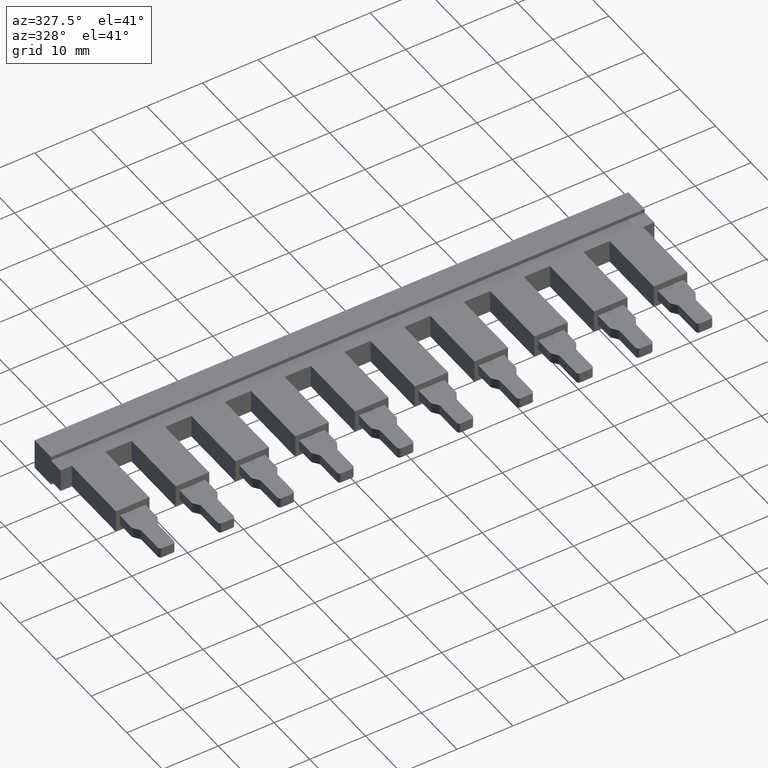
[diagram: clean part render]
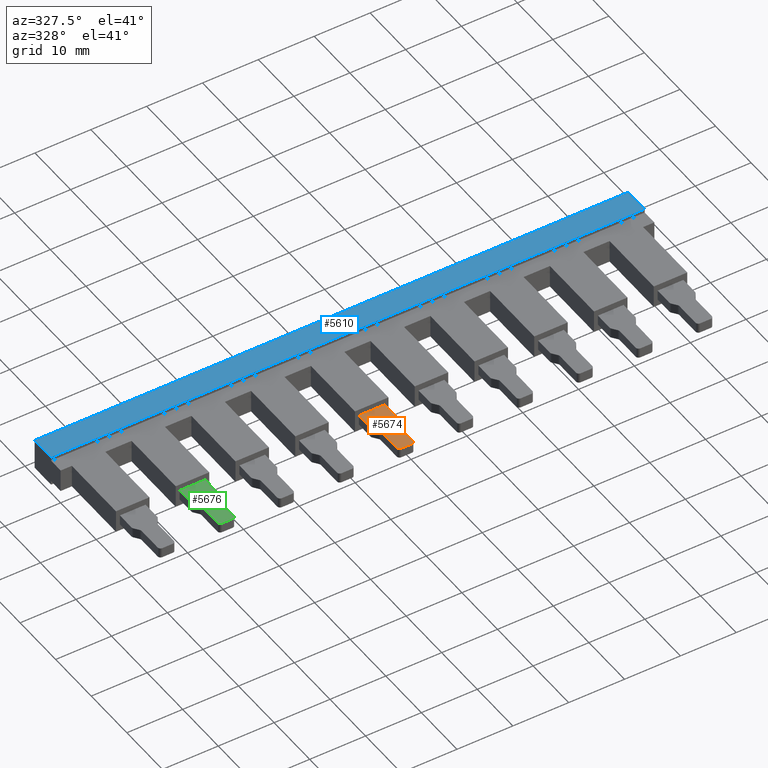
[diagram: same view with three faces highlighted in distinct colors, each labeled with its STEP entity id]
A machine part, auxiliary view with three faces highlighted in distinct colors.
Their STEP definitions:

[orange] entity #5674 — the highlighted planar face has unit normal (-0, 0, -1).
#873 = PLANE ( 'NONE',  #1191 ) ;
#874 = CARTESIAN_POINT ( 'NONE',  ( 45.50000000000000000, -2.699999999999986900, 2.949999999999999700 ) ) ;
#878 = DIRECTION ( 'NONE',  ( -9.427844978134822700E-017, 0.0000000000000000000, -1.000000000000000000 ) ) ;
#879 = DIRECTION ( 'NONE',  ( -1.000000000000000000, 0.0000000000000000000, 9.427844978134822700E-017 ) ) ;
#896 = FACE_OUTER_BOUND ( 'NONE', #2271, .T. ) ;
#1191 = AXIS2_PLACEMENT_3D ( 'NONE', #874, #878, #879 ) ;
#1601 = VECTOR ( 'NONE', #3871, 1000.000000000000000 ) ;
#1640 = VECTOR ( 'NONE', #3103, 1000.000000000000000 ) ;
#1646 = VECTOR ( 'NONE', #3930, 1000.000000000000100 ) ;
#1659 = CIRCLE ( 'NONE', #1662, 0.5000000000000004400 ) ;
#1662 = AXIS2_PLACEMENT_3D ( 'NONE', #3982, #3964, #3994 ) ;
#1669 = CIRCLE ( 'NONE', #1747, 0.5000000000000282000 ) ;
#1693 = AXIS2_PLACEMENT_3D ( 'NONE', #3230, #3232, #3233 ) ;
#1694 = VECTOR ( 'NONE', #3240, 1000.000000000000100 ) ;
#1699 = AXIS2_PLACEMENT_3D ( 'NONE', #3201, #3189, #3211 ) ;
#1700 = CIRCLE ( 'NONE', #1729, 0.5000000000000004400 ) ;
#1701 = VECTOR ( 'NONE', #3140, 1000.000000000000000 ) ;
#1709 = CIRCLE ( 'NONE', #1710, 0.5000000000000004400 ) ;
#1710 = AXIS2_PLACEMENT_3D ( 'NONE', #3200, #3221, #3222 ) ;
#1719 = VECTOR ( 'NONE', #3196, 1000.000000000000000 ) ;
#1729 = AXIS2_PLACEMENT_3D ( 'NONE', #3150, #3162, #3147 ) ;
#1730 = CIRCLE ( 'NONE', #1693, 0.5000000000000282000 ) ;
#1741 = VECTOR ( 'NONE', #3182, 1000.000000000000000 ) ;
#1745 = VECTOR ( 'NONE', #3261, 1000.000000000000000 ) ;
#1747 = AXIS2_PLACEMENT_3D ( 'NONE', #3112, #3116, #3117 ) ;
#1749 = CIRCLE ( 'NONE', #1699, 0.5000000000000004400 ) ;
#2271 = EDGE_LOOP ( 'NONE', ( #2886, #2945, #2889, #2905, #2861, #2881, #2911, #2857, #2902, #2897, #2882, #2898, #2891, #2878 ) ) ;
#2857 = ORIENTED_EDGE ( 'NONE', *, *, #5343, .F. ) ;
#2861 = ORIENTED_EDGE ( 'NONE', *, *, #5339, .F. ) ;
#2878 = ORIENTED_EDGE ( 'NONE', *, *, #5350, .F. ) ;
#2881 = ORIENTED_EDGE ( 'NONE', *, *, #5385, .F. ) ;
#2882 = ORIENTED_EDGE ( 'NONE', *, *, #5298, .T. ) ;
#2886 = ORIENTED_EDGE ( 'NONE', *, *, #5284, .F. ) ;
#2889 = ORIENTED_EDGE ( 'NONE', *, *, #5387, .T. ) ;
#2891 = ORIENTED_EDGE ( 'NONE', *, *, #5369, .F. ) ;
#2897 = ORIENTED_EDGE ( 'NONE', *, *, #5354, .T. ) ;
#2898 = ORIENTED_EDGE ( 'NONE', *, *, #5317, .F. ) ;
#2902 = ORIENTED_EDGE ( 'NONE', *, *, #5375, .F. ) ;
#2905 = ORIENTED_EDGE ( 'NONE', *, *, #5363, .T. ) ;
#2911 = ORIENTED_EDGE ( 'NONE', *, *, #5367, .F. ) ;
#2945 = ORIENTED_EDGE ( 'NONE', *, *, #5359, .F. ) ;
#3103 = DIRECTION ( 'NONE',  ( 0.0000000000000000000, 1.000000000000000000, 0.0000000000000000000 ) ) ;
#3112 = CARTESIAN_POINT ( 'NONE',  ( 48.74999999999999300, -21.69999999999998200, 2.949999999999999300 ) ) ;
#3115 = LINE ( 'NONE', #3133, #1640 ) ;
#3116 = DIRECTION ( 'NONE',  ( -0.0000000000000000000, 1.665334536937734800E-016, -1.000000000000000000 ) ) ;
#3117 = DIRECTION ( 'NONE',  ( 0.0000000000000000000, -1.000000000000000000, 0.0000000000000000000 ) ) ;
#3133 = CARTESIAN_POINT ( 'NONE',  ( 46.34999999999999400, -2.699999999999986900, 2.949999999999999700 ) ) ;
#3140 = DIRECTION ( 'NONE',  ( 1.000000000000000000, 0.0000000000000000000, -9.427844978134822700E-017 ) ) ;
#3147 = DIRECTION ( 'NONE',  ( -1.000000000000000000, 0.0000000000000000000, 0.0000000000000000000 ) ) ;
#3150 = CARTESIAN_POINT ( 'NONE',  ( 49.74999999999966600, -17.16666666666699500, 2.949999999999999300 ) ) ;
#3154 = CARTESIAN_POINT ( 'NONE',  ( 30.77069040994249600, -12.39999999999999700, 2.950000000000001100 ) ) ;
#3162 = DIRECTION ( 'NONE',  ( 0.0000000000000000000, 0.0000000000000000000, -1.000000000000000000 ) ) ;
#3163 = LINE ( 'NONE', #3154, #1701 ) ;
#3182 = DIRECTION ( 'NONE',  ( -0.0000000000000000000, -1.000000000000000000, -0.0000000000000000000 ) ) ;
#3189 = DIRECTION ( 'NONE',  ( -0.0000000000000000000, -0.0000000000000000000, -1.000000000000000000 ) ) ;
#3190 = LINE ( 'NONE', #3199, #1719 ) ;
#3196 = DIRECTION ( 'NONE',  ( -1.000000000000000000, 0.0000000000000000000, 9.427844978134822700E-017 ) ) ;
#3199 = CARTESIAN_POINT ( 'NONE',  ( 45.50000000000000000, -22.19999999999999200, 2.949999999999999700 ) ) ;
#3200 = CARTESIAN_POINT ( 'NONE',  ( 46.00000000000000000, -15.70000000000010200, 2.949999999999999700 ) ) ;
#3201 = CARTESIAN_POINT ( 'NONE',  ( 45.85000000000021500, -17.16666666666671000, 2.949999999999999700 ) ) ;
#3207 = LINE ( 'NONE', #3212, #1741 ) ;
#3211 = DIRECTION ( 'NONE',  ( 1.000000000000000000, 0.0000000000000000000, 0.0000000000000000000 ) ) ;
#3212 = CARTESIAN_POINT ( 'NONE',  ( 50.10000000000000100, -2.699999999999986900, 2.949999999999999300 ) ) ;
#3221 = DIRECTION ( 'NONE',  ( 0.0000000000000000000, 0.0000000000000000000, -1.000000000000000000 ) ) ;
#3222 = DIRECTION ( 'NONE',  ( -1.000000000000000000, 0.0000000000000000000, 0.0000000000000000000 ) ) ;
#3230 = CARTESIAN_POINT ( 'NONE',  ( 46.85000000000007200, -21.69999999999998200, 2.949999999999999700 ) ) ;
#3232 = DIRECTION ( 'NONE',  ( 0.0000000000000000000, 0.0000000000000000000, -1.000000000000000000 ) ) ;
#3233 = DIRECTION ( 'NONE',  ( -1.000000000000000000, 0.0000000000000000000, 0.0000000000000000000 ) ) ;
#3236 = LINE ( 'NONE', #3237, #1694 ) ;
#3237 = CARTESIAN_POINT ( 'NONE',  ( 45.60000000000010100, -16.00000000000023400, 2.949999999999999700 ) ) ;
#3240 = DIRECTION ( 'NONE',  ( 0.6000000000001560800, -0.7999999999998829200, -0.0000000000000000000 ) ) ;
#3242 = CARTESIAN_POINT ( 'NONE',  ( 49.24999999999965900, -2.699999999999986900, 2.949999999999999300 ) ) ;
#3250 = LINE ( 'NONE', #3242, #1745 ) ;
#3261 = DIRECTION ( 'NONE',  ( -0.0000000000000000000, -1.000000000000000000, -0.0000000000000000000 ) ) ;
#3866 = LINE ( 'NONE', #3873, #1601 ) ;
#3871 = DIRECTION ( 'NONE',  ( 0.0000000000000000000, 1.000000000000000000, 0.0000000000000000000 ) ) ;
#3873 = CARTESIAN_POINT ( 'NONE',  ( 45.50000000000000000, -2.699999999999986900, 2.949999999999999700 ) ) ;
#3887 = LINE ( 'NONE', #3921, #1646 ) ;
#3921 = CARTESIAN_POINT ( 'NONE',  ( 49.99999999999999300, -16.00000000000023400, 2.949999999999999700 ) ) ;
#3930 = DIRECTION ( 'NONE',  ( 0.6000000000001560800, 0.7999999999998829200, -0.0000000000000000000 ) ) ;
#3964 = DIRECTION ( 'NONE',  ( -0.0000000000000000000, -0.0000000000000000000, -1.000000000000000000 ) ) ;
#3982 = CARTESIAN_POINT ( 'NONE',  ( 49.59999999999999400, -15.70000000000023700, 2.949999999999999300 ) ) ;
#3994 = DIRECTION ( 'NONE',  ( 1.000000000000000000, 0.0000000000000000000, 0.0000000000000000000 ) ) ;
#4751 = CARTESIAN_POINT ( 'NONE',  ( 49.24999999999982900, -21.69999999999998200, 2.949999999999999300 ) ) ;
#4752 = CARTESIAN_POINT ( 'NONE',  ( 49.34999999999971700, -16.86666666666691600, 2.949999999999999300 ) ) ;
#4765 = CARTESIAN_POINT ( 'NONE',  ( 46.35000000000010800, -17.16666666666672500, 2.949999999999999700 ) ) ;
#4769 = CARTESIAN_POINT ( 'NONE',  ( 49.99999999999994300, -16.00000000000031300, 2.949999999999999300 ) ) ;
#4771 = CARTESIAN_POINT ( 'NONE',  ( 46.34999999999999400, -21.69999999999998200, 2.949999999999999700 ) ) ;
#4772 = CARTESIAN_POINT ( 'NONE',  ( 45.60000000000005800, -16.00000000000018100, 2.949999999999999700 ) ) ;
#4784 = CARTESIAN_POINT ( 'NONE',  ( 50.10000000000000100, -15.70000000000023700, 2.949999999999999300 ) ) ;
#4796 = CARTESIAN_POINT ( 'NONE',  ( 48.74999999999999300, -22.19999999999999200, 2.949999999999999300 ) ) ;
#4815 = CARTESIAN_POINT ( 'NONE',  ( 46.25000000000015600, -16.86666666666663500, 2.949999999999999700 ) ) ;
#4818 = CARTESIAN_POINT ( 'NONE',  ( 49.24999999999965900, -17.16666666666700900, 2.949999999999999300 ) ) ;
#4828 = CARTESIAN_POINT ( 'NONE',  ( 46.85000000000007200, -22.19999999999999200, 2.949999999999999700 ) ) ;
#4831 = CARTESIAN_POINT ( 'NONE',  ( 50.10000000000000100, -12.39999999999999700, 2.949999999999999300 ) ) ;
#4850 = CARTESIAN_POINT ( 'NONE',  ( 45.50000000000000000, -12.39999999999999700, 2.949999999999999700 ) ) ;
#4854 = CARTESIAN_POINT ( 'NONE',  ( 45.50000000000000000, -15.70000000000010200, 2.949999999999999700 ) ) ;
#5284 = EDGE_CURVE ( 'NONE', #6076, #6070, #3866, .T. ) ;
#5298 = EDGE_CURVE ( 'NONE', #6016, #5997, #3887, .T. ) ;
#5317 = EDGE_CURVE ( 'NONE', #6004, #5997, #1659, .T. ) ;
#5339 = EDGE_CURVE ( 'NONE', #6002, #5988, #3115, .T. ) ;
#5343 = EDGE_CURVE ( 'NONE', #5986, #6021, #1669, .T. ) ;
#5350 = EDGE_CURVE ( 'NONE', #6070, #6052, #3163, .T. ) ;
#5354 = EDGE_CURVE ( 'NONE', #6026, #6016, #1700, .T. ) ;
#5359 = EDGE_CURVE ( 'NONE', #6003, #6076, #1709, .T. ) ;
#5363 = EDGE_CURVE ( 'NONE', #6029, #5988, #1749, .T. ) ;
#5367 = EDGE_CURVE ( 'NONE', #6021, #6045, #3190, .T. ) ;
#5369 = EDGE_CURVE ( 'NONE', #6052, #6004, #3207, .T. ) ;
#5375 = EDGE_CURVE ( 'NONE', #6026, #5986, #3250, .T. ) ;
#5385 = EDGE_CURVE ( 'NONE', #6045, #6002, #1730, .T. ) ;
#5387 = EDGE_CURVE ( 'NONE', #6003, #6029, #3236, .T. ) ;
#5674 = ADVANCED_FACE ( 'NONE', ( #896 ), #873, .F. ) ;
#5986 = VERTEX_POINT ( 'NONE', #4751 ) ;
#5988 = VERTEX_POINT ( 'NONE', #4765 ) ;
#5997 = VERTEX_POINT ( 'NONE', #4769 ) ;
#6002 = VERTEX_POINT ( 'NONE', #4771 ) ;
#6003 = VERTEX_POINT ( 'NONE', #4772 ) ;
#6004 = VERTEX_POINT ( 'NONE', #4784 ) ;
#6016 = VERTEX_POINT ( 'NONE', #4752 ) ;
#6021 = VERTEX_POINT ( 'NONE', #4796 ) ;
#6026 = VERTEX_POINT ( 'NONE', #4818 ) ;
#6029 = VERTEX_POINT ( 'NONE', #4815 ) ;
#6045 = VERTEX_POINT ( 'NONE', #4828 ) ;
#6052 = VERTEX_POINT ( 'NONE', #4831 ) ;
#6070 = VERTEX_POINT ( 'NONE', #4850 ) ;
#6076 = VERTEX_POINT ( 'NONE', #4854 ) ;

[blue] entity #5610 — the highlighted planar face has unit normal (0, 0, 1).
#558 = PLANE ( 'NONE',  #1101 ) ;
#565 = DIRECTION ( 'NONE',  ( 0.0000000000000000000, 0.0000000000000000000, 1.000000000000000000 ) ) ;
#569 = FACE_OUTER_BOUND ( 'NONE', #2199, .T. ) ;
#580 = CARTESIAN_POINT ( 'NONE',  ( -10.70000000000000300, 7.299999999999993600, 4.799999999999999800 ) ) ;
#582 = DIRECTION ( 'NONE',  ( 1.000000000000000000, 0.0000000000000000000, -0.0000000000000000000 ) ) ;
#1101 = AXIS2_PLACEMENT_3D ( 'NONE', #580, #565, #582 ) ;
#1326 = VECTOR ( 'NONE', #2423, 1000.000000000000000 ) ;
#1346 = VECTOR ( 'NONE', #2410, 1000.000000000000000 ) ;
#1395 = VECTOR ( 'NONE', #2493, 1000.000000000000000 ) ;
#1401 = VECTOR ( 'NONE', #2506, 1000.000000000000000 ) ;
#2199 = EDGE_LOOP ( 'NONE', ( #6256, #6236, #6239, #6245 ) ) ;
#2322 = LINE ( 'NONE', #2384, #1346 ) ;
#2384 = CARTESIAN_POINT ( 'NONE',  ( -10.70000000000000300, 7.299999999999993600, 4.799999999999999800 ) ) ;
#2410 = DIRECTION ( 'NONE',  ( -1.000000000000000000, -2.775557561562890400E-016, 0.0000000000000000000 ) ) ;
#2423 = DIRECTION ( 'NONE',  ( -2.409338161078894500E-017, -1.000000000000000000, 0.0000000000000000000 ) ) ;
#2428 = CARTESIAN_POINT ( 'NONE',  ( 0.0000000000000000000, 7.299999999999999800, 4.799999999999999800 ) ) ;
#2459 = LINE ( 'NONE', #2428, #1326 ) ;
#2465 = LINE ( 'NONE', #2509, #1395 ) ;
#2470 = LINE ( 'NONE', #2500, #1401 ) ;
#2493 = DIRECTION ( 'NONE',  ( -3.016491377670779700E-016, 1.000000000000000000, 0.0000000000000000000 ) ) ;
#2500 = CARTESIAN_POINT ( 'NONE',  ( 31.39999999999999900, 2.700000000000005100, 4.799999999999999800 ) ) ;
#2506 = DIRECTION ( 'NONE',  ( 1.000000000000000000, 2.775557561562890400E-016, 0.0000000000000000000 ) ) ;
#2509 = CARTESIAN_POINT ( 'NONE',  ( 106.3000000000000000, 7.300000000000017600, 4.799999999999999800 ) ) ;
#4586 = CARTESIAN_POINT ( 'NONE',  ( 106.3000000000000000, 2.700000000000017500, 4.799999999999999800 ) ) ;
#4609 = CARTESIAN_POINT ( 'NONE',  ( -1.108295554096292100E-016, 2.699999999999997500, 4.799999999999999800 ) ) ;
#4636 = CARTESIAN_POINT ( 'NONE',  ( 106.3000000000000000, 7.300000000000017600, 4.799999999999999800 ) ) ;
#4668 = CARTESIAN_POINT ( 'NONE',  ( 0.0000000000000000000, 7.299999999999999800, 4.799999999999999800 ) ) ;
#5035 = EDGE_CURVE ( 'NONE', #5842, #5843, #2322, .T. ) ;
#5051 = EDGE_CURVE ( 'NONE', #5843, #5826, #2459, .T. ) ;
#5078 = EDGE_CURVE ( 'NONE', #5808, #5842, #2465, .T. ) ;
#5079 = EDGE_CURVE ( 'NONE', #5826, #5808, #2470, .T. ) ;
#5610 = ADVANCED_FACE ( 'NONE', ( #569 ), #558, .T. ) ;
#5808 = VERTEX_POINT ( 'NONE', #4586 ) ;
#5826 = VERTEX_POINT ( 'NONE', #4609 ) ;
#5842 = VERTEX_POINT ( 'NONE', #4636 ) ;
#5843 = VERTEX_POINT ( 'NONE', #4668 ) ;
#6236 = ORIENTED_EDGE ( 'NONE', *, *, #5078, .T. ) ;
#6239 = ORIENTED_EDGE ( 'NONE', *, *, #5035, .T. ) ;
#6245 = ORIENTED_EDGE ( 'NONE', *, *, #5051, .T. ) ;
#6256 = ORIENTED_EDGE ( 'NONE', *, *, #5079, .T. ) ;

[green] entity #5676 — the highlighted planar face has unit normal (-0, 0, -1).
#554 = FACE_OUTER_BOUND ( 'NONE', #2268, .T. ) ;
#747 = PLANE ( 'NONE',  #1203 ) ;
#788 = CARTESIAN_POINT ( 'NONE',  ( 13.39999999999999900, -2.699999999999992200, 2.949999999999999700 ) ) ;
#790 = DIRECTION ( 'NONE',  ( -9.427844978134822700E-017, 0.0000000000000000000, -1.000000000000000000 ) ) ;
#843 = DIRECTION ( 'NONE',  ( -1.000000000000000000, 0.0000000000000000000, 9.427844978134822700E-017 ) ) ;
#1203 = AXIS2_PLACEMENT_3D ( 'NONE', #788, #790, #843 ) ;
#1509 = AXIS2_PLACEMENT_3D ( 'NONE', #3634, #3647, #3636 ) ;
#1512 = CIRCLE ( 'NONE', #1509, 0.5000000000000004400 ) ;
#1524 = VECTOR ( 'NONE', #3575, 1000.000000000000100 ) ;
#1538 = VECTOR ( 'NONE', #3726, 1000.000000000000000 ) ;
#1557 = CIRCLE ( 'NONE', #1564, 0.5000000000000282000 ) ;
#1564 = AXIS2_PLACEMENT_3D ( 'NONE', #3695, #3732, #3701 ) ;
#1570 = VECTOR ( 'NONE', #3738, 1000.000000000000000 ) ;
#1578 = AXIS2_PLACEMENT_3D ( 'NONE', #3803, #3797, #3813 ) ;
#1592 = AXIS2_PLACEMENT_3D ( 'NONE', #3767, #3774, #3740 ) ;
#1602 = VECTOR ( 'NONE', #3860, 1000.000000000000000 ) ;
#1603 = CIRCLE ( 'NONE', #1592, 0.5000000000000004400 ) ;
#1609 = AXIS2_PLACEMENT_3D ( 'NONE', #3792, #3796, #3826 ) ;
#1611 = VECTOR ( 'NONE', #3817, 1000.000000000000100 ) ;
#1626 = CIRCLE ( 'NONE', #1627, 0.5000000000000282000 ) ;
#1627 = AXIS2_PLACEMENT_3D ( 'NONE', #3742, #3741, #3743 ) ;
#1629 = CIRCLE ( 'NONE', #1578, 0.5000000000000004400 ) ;
#1630 = CIRCLE ( 'NONE', #1609, 0.5000000000000004400 ) ;
#1631 = VECTOR ( 'NONE', #3919, 1000.000000000000000 ) ;
#1636 = VECTOR ( 'NONE', #4006, 1000.000000000000000 ) ;
#1686 = VECTOR ( 'NONE', #3107, 1000.000000000000000 ) ;
#2268 = EDGE_LOOP ( 'NONE', ( #2676, #2710, #2698, #2677, #2697, #2709, #2717, #2712, #2672, #2723, #2669, #2711, #2726, #2690 ) ) ;
#2669 = ORIENTED_EDGE ( 'NONE', *, *, #5192, .T. ) ;
#2672 = ORIENTED_EDGE ( 'NONE', *, *, #5230, .F. ) ;
#2676 = ORIENTED_EDGE ( 'NONE', *, *, #5226, .F. ) ;
#2677 = ORIENTED_EDGE ( 'NONE', *, *, #5253, .T. ) ;
#2690 = ORIENTED_EDGE ( 'NONE', *, *, #5333, .F. ) ;
#2697 = ORIENTED_EDGE ( 'NONE', *, *, #5300, .F. ) ;
#2698 = ORIENTED_EDGE ( 'NONE', *, *, #5254, .T. ) ;
#2709 = ORIENTED_EDGE ( 'NONE', *, *, #5252, .F. ) ;
#2710 = ORIENTED_EDGE ( 'NONE', *, *, #5260, .F. ) ;
#2711 = ORIENTED_EDGE ( 'NONE', *, *, #5264, .F. ) ;
#2712 = ORIENTED_EDGE ( 'NONE', *, *, #5231, .F. ) ;
#2717 = ORIENTED_EDGE ( 'NONE', *, *, #5281, .F. ) ;
#2723 = ORIENTED_EDGE ( 'NONE', *, *, #5196, .T. ) ;
#2726 = ORIENTED_EDGE ( 'NONE', *, *, #5331, .F. ) ;
#3107 = DIRECTION ( 'NONE',  ( 1.000000000000000000, 0.0000000000000000000, -9.427844978134822700E-017 ) ) ;
#3121 = LINE ( 'NONE', #3122, #1686 ) ;
#3122 = CARTESIAN_POINT ( 'NONE',  ( -1.329309590057499600, -12.40000000000000200, 2.950000000000001100 ) ) ;
#3561 = CARTESIAN_POINT ( 'NONE',  ( 17.89999999999999900, -16.00000000000024200, 2.949999999999999700 ) ) ;
#3575 = DIRECTION ( 'NONE',  ( 0.6000000000001560800, 0.7999999999998829200, -0.0000000000000000000 ) ) ;
#3585 = LINE ( 'NONE', #3561, #1524 ) ;
#3634 = CARTESIAN_POINT ( 'NONE',  ( 17.64999999999966500, -17.16666666666699800, 2.949999999999999300 ) ) ;
#3636 = DIRECTION ( 'NONE',  ( -1.000000000000000000, 0.0000000000000000000, 0.0000000000000000000 ) ) ;
#3647 = DIRECTION ( 'NONE',  ( 0.0000000000000000000, 0.0000000000000000000, -1.000000000000000000 ) ) ;
#3695 = CARTESIAN_POINT ( 'NONE',  ( 16.64999999999999900, -21.69999999999998900, 2.949999999999999300 ) ) ;
#3697 = CARTESIAN_POINT ( 'NONE',  ( 13.39999999999999900, -2.699999999999992200, 2.949999999999999700 ) ) ;
#3701 = DIRECTION ( 'NONE',  ( 0.0000000000000000000, -1.000000000000000000, 0.0000000000000000000 ) ) ;
#3726 = DIRECTION ( 'NONE',  ( -0.0000000000000000000, -1.000000000000000000, -0.0000000000000000000 ) ) ;
#3732 = DIRECTION ( 'NONE',  ( -0.0000000000000000000, 1.665334536937734800E-016, -1.000000000000000000 ) ) ;
#3733 = LINE ( 'NONE', #3697, #1570 ) ;
#3737 = LINE ( 'NONE', #3739, #1538 ) ;
#3738 = DIRECTION ( 'NONE',  ( 0.0000000000000000000, 1.000000000000000000, 0.0000000000000000000 ) ) ;
#3739 = CARTESIAN_POINT ( 'NONE',  ( 17.14999999999966500, -2.699999999999992200, 2.949999999999999300 ) ) ;
#3740 = DIRECTION ( 'NONE',  ( 1.000000000000000000, 0.0000000000000000000, 0.0000000000000000000 ) ) ;
#3741 = DIRECTION ( 'NONE',  ( 0.0000000000000000000, 0.0000000000000000000, -1.000000000000000000 ) ) ;
#3742 = CARTESIAN_POINT ( 'NONE',  ( 14.75000000000007800, -21.69999999999998900, 2.949999999999999700 ) ) ;
#3743 = DIRECTION ( 'NONE',  ( -1.000000000000000000, 0.0000000000000000000, 0.0000000000000000000 ) ) ;
#3744 = LINE ( 'NONE', #3765, #1611 ) ;
#3765 = CARTESIAN_POINT ( 'NONE',  ( 13.50000000000010100, -16.00000000000024200, 2.949999999999999700 ) ) ;
#3767 = CARTESIAN_POINT ( 'NONE',  ( 13.75000000000022000, -17.16666666666671800, 2.949999999999999700 ) ) ;
#3774 = DIRECTION ( 'NONE',  ( -0.0000000000000000000, -0.0000000000000000000, -1.000000000000000000 ) ) ;
#3792 = CARTESIAN_POINT ( 'NONE',  ( 13.89999999999999900, -15.70000000000010900, 2.949999999999999700 ) ) ;
#3796 = DIRECTION ( 'NONE',  ( 0.0000000000000000000, 0.0000000000000000000, -1.000000000000000000 ) ) ;
#3797 = DIRECTION ( 'NONE',  ( -0.0000000000000000000, -0.0000000000000000000, -1.000000000000000000 ) ) ;
#3803 = CARTESIAN_POINT ( 'NONE',  ( 17.49999999999999600, -15.70000000000024400, 2.949999999999999300 ) ) ;
#3813 = DIRECTION ( 'NONE',  ( 1.000000000000000000, 0.0000000000000000000, 0.0000000000000000000 ) ) ;
#3817 = DIRECTION ( 'NONE',  ( 0.6000000000001560800, -0.7999999999998829200, -0.0000000000000000000 ) ) ;
#3826 = DIRECTION ( 'NONE',  ( -1.000000000000000000, 0.0000000000000000000, 0.0000000000000000000 ) ) ;
#3855 = LINE ( 'NONE', #3856, #1602 ) ;
#3856 = CARTESIAN_POINT ( 'NONE',  ( 13.39999999999999900, -22.19999999999999600, 2.949999999999999700 ) ) ;
#3860 = DIRECTION ( 'NONE',  ( -1.000000000000000000, 0.0000000000000000000, 9.427844978134822700E-017 ) ) ;
#3914 = CARTESIAN_POINT ( 'NONE',  ( 14.24999999999999800, -2.699999999999992200, 2.949999999999999700 ) ) ;
#3919 = DIRECTION ( 'NONE',  ( 0.0000000000000000000, 1.000000000000000000, 0.0000000000000000000 ) ) ;
#3948 = LINE ( 'NONE', #3914, #1631 ) ;
#4005 = LINE ( 'NONE', #4014, #1636 ) ;
#4006 = DIRECTION ( 'NONE',  ( -0.0000000000000000000, -1.000000000000000000, -0.0000000000000000000 ) ) ;
#4014 = CARTESIAN_POINT ( 'NONE',  ( 18.00000000000000400, -2.699999999999992200, 2.949999999999999300 ) ) ;
#4736 = CARTESIAN_POINT ( 'NONE',  ( 14.15000000000016200, -16.86666666666664200, 2.949999999999999700 ) ) ;
#4739 = CARTESIAN_POINT ( 'NONE',  ( 17.89999999999994500, -16.00000000000032000, 2.949999999999999300 ) ) ;
#4755 = CARTESIAN_POINT ( 'NONE',  ( 16.64999999999999900, -22.19999999999999600, 2.949999999999999300 ) ) ;
#4774 = CARTESIAN_POINT ( 'NONE',  ( 17.14999999999966500, -17.16666666666701600, 2.949999999999999300 ) ) ;
#4788 = CARTESIAN_POINT ( 'NONE',  ( 14.25000000000011000, -17.16666666666673200, 2.949999999999999700 ) ) ;
#4791 = CARTESIAN_POINT ( 'NONE',  ( 18.00000000000000400, -12.40000000000000200, 2.949999999999999300 ) ) ;
#4793 = CARTESIAN_POINT ( 'NONE',  ( 14.75000000000007800, -22.19999999999999600, 2.949999999999999700 ) ) ;
#4794 = CARTESIAN_POINT ( 'NONE',  ( 17.24999999999972300, -16.86666666666692300, 2.949999999999999300 ) ) ;
#4795 = CARTESIAN_POINT ( 'NONE',  ( 18.00000000000000400, -15.70000000000024400, 2.949999999999999300 ) ) ;
#4807 = CARTESIAN_POINT ( 'NONE',  ( 13.50000000000005700, -16.00000000000018800, 2.949999999999999700 ) ) ;
#4814 = CARTESIAN_POINT ( 'NONE',  ( 14.24999999999999800, -21.69999999999998900, 2.949999999999999700 ) ) ;
#4825 = CARTESIAN_POINT ( 'NONE',  ( 13.39999999999999900, -12.40000000000000200, 2.949999999999999700 ) ) ;
#4837 = CARTESIAN_POINT ( 'NONE',  ( 13.39999999999999900, -15.70000000000010900, 2.949999999999999700 ) ) ;
#4838 = CARTESIAN_POINT ( 'NONE',  ( 17.14999999999983200, -21.69999999999998900, 2.949999999999999300 ) ) ;
#5192 = EDGE_CURVE ( 'NONE', #5980, #5937, #3585, .T. ) ;
#5196 = EDGE_CURVE ( 'NONE', #5978, #5980, #1512, .T. ) ;
#5226 = EDGE_CURVE ( 'NONE', #6039, #6030, #3733, .T. ) ;
#5230 = EDGE_CURVE ( 'NONE', #5978, #6042, #3737, .T. ) ;
#5231 = EDGE_CURVE ( 'NONE', #6042, #5965, #1557, .T. ) ;
#5252 = EDGE_CURVE ( 'NONE', #6020, #6027, #1626, .T. ) ;
#5253 = EDGE_CURVE ( 'NONE', #5943, #5985, #1603, .T. ) ;
#5254 = EDGE_CURVE ( 'NONE', #5976, #5943, #3744, .T. ) ;
#5260 = EDGE_CURVE ( 'NONE', #5976, #6039, #1630, .T. ) ;
#5264 = EDGE_CURVE ( 'NONE', #5982, #5937, #1629, .T. ) ;
#5281 = EDGE_CURVE ( 'NONE', #5965, #6020, #3855, .T. ) ;
#5300 = EDGE_CURVE ( 'NONE', #6027, #5985, #3948, .T. ) ;
#5331 = EDGE_CURVE ( 'NONE', #5999, #5982, #4005, .T. ) ;
#5333 = EDGE_CURVE ( 'NONE', #6030, #5999, #3121, .T. ) ;
#5676 = ADVANCED_FACE ( 'NONE', ( #554 ), #747, .F. ) ;
#5937 = VERTEX_POINT ( 'NONE', #4739 ) ;
#5943 = VERTEX_POINT ( 'NONE', #4736 ) ;
#5965 = VERTEX_POINT ( 'NONE', #4755 ) ;
#5976 = VERTEX_POINT ( 'NONE', #4807 ) ;
#5978 = VERTEX_POINT ( 'NONE', #4774 ) ;
#5980 = VERTEX_POINT ( 'NONE', #4794 ) ;
#5982 = VERTEX_POINT ( 'NONE', #4795 ) ;
#5985 = VERTEX_POINT ( 'NONE', #4788 ) ;
#5999 = VERTEX_POINT ( 'NONE', #4791 ) ;
#6020 = VERTEX_POINT ( 'NONE', #4793 ) ;
#6027 = VERTEX_POINT ( 'NONE', #4814 ) ;
#6030 = VERTEX_POINT ( 'NONE', #4825 ) ;
#6039 = VERTEX_POINT ( 'NONE', #4837 ) ;
#6042 = VERTEX_POINT ( 'NONE', #4838 ) ;